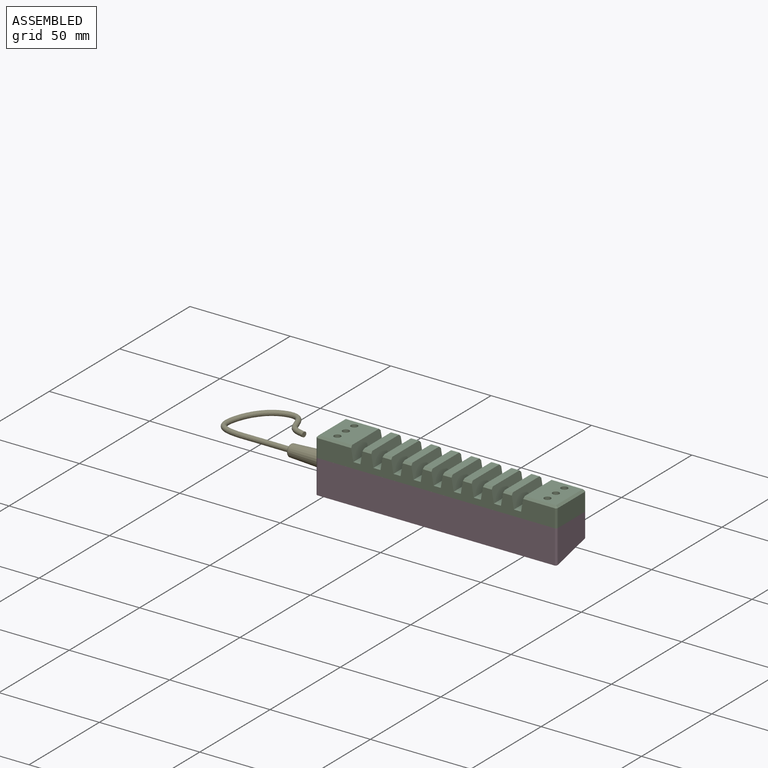
[diagram: assembled view]
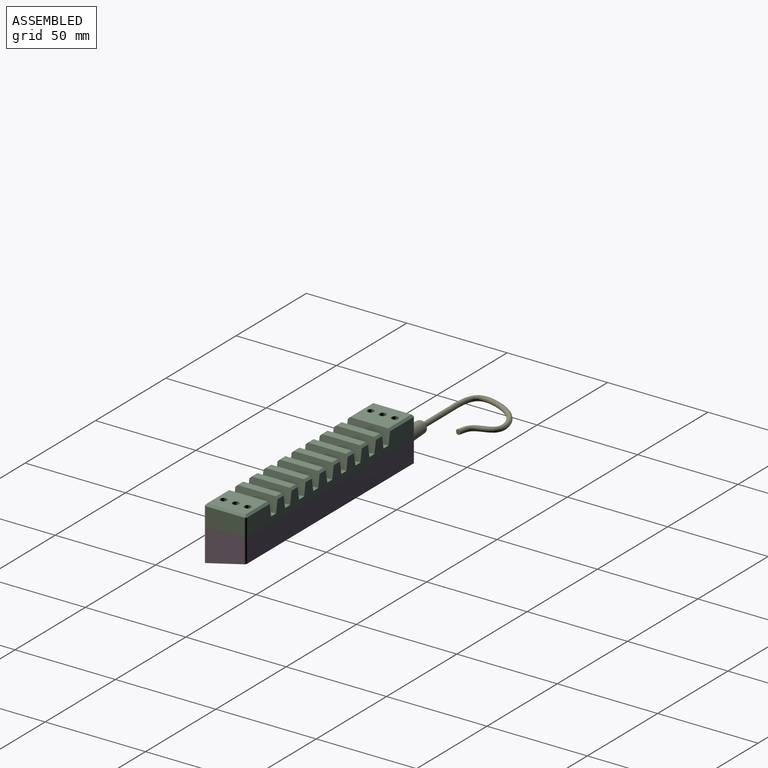
[diagram: assembled view, second angle]
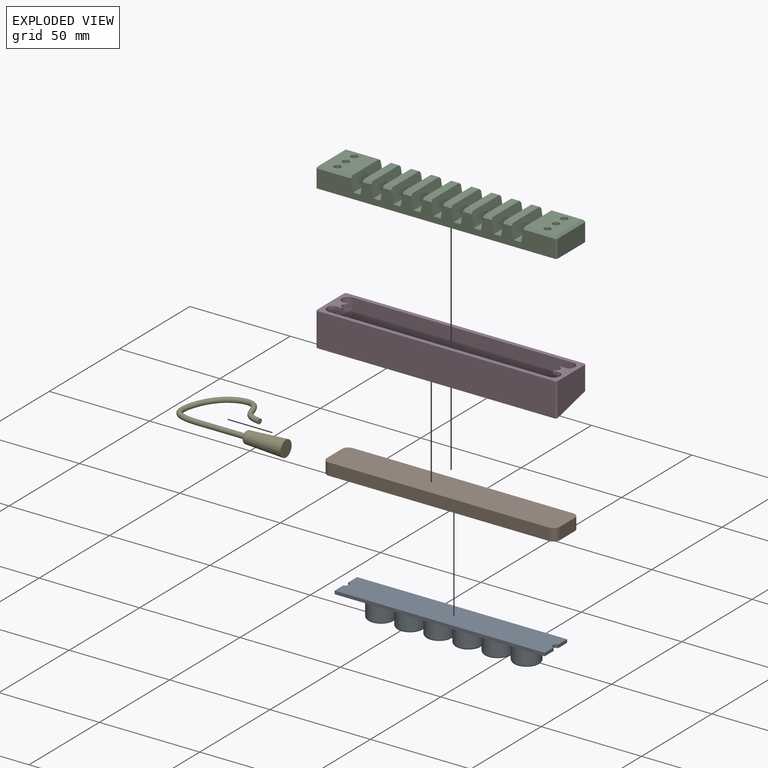
[diagram: exploded view]
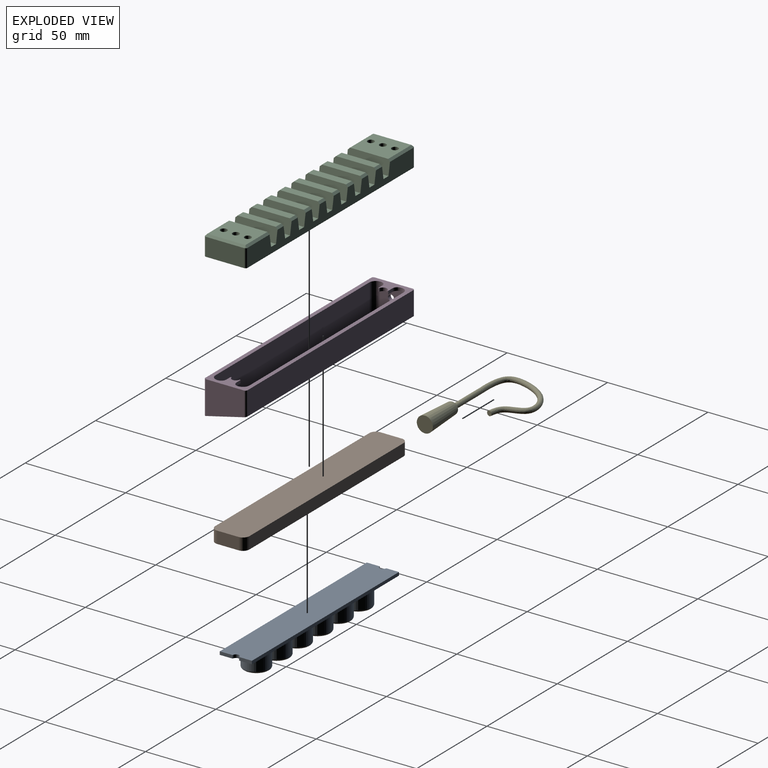
[diagram: exploded view, second angle]
ASSEMBLY  parts=5 mates=4
PART A: 28 faces, bbox 104.6x16x10.6 mm
  f0: plane 6.4x1.6mm, normal (1,0,0), area 10.2mm2, adj f2,f3,f7,f8
  f1: plane 6.4x1.6mm, normal (-1,0,0), area 10.2mm2, adj f2,f3,f7,f9
  f2: plane 104.6x16mm, normal (0,0,1), area 869.2mm2, adj f0,f1,f4,f5,f6,f7,f8,f9
  f3: plane 104.6x16mm, normal (0,0,-1), area 1665.6mm2, adj f0,f1,f4,f5,f6,f7,f8,f9
  f4: plane 6.4x1.6mm, normal (1,0,0), area 10.2mm2, adj f2,f3,f5,f8
  f5: plane 104.6x1.6mm, normal (0,1,0), area 167.4mm2, adj f2,f3,f4,f6
  f6: plane 6.4x1.6mm, normal (-1,0,0), area 10.2mm2, adj f2,f3,f5,f9
  f7: plane 104.6x1.6mm, normal (0,-1,0), area 167.4mm2, adj f0,f1,f2,f3
  f8: cylinder r=1.6mm len=3.2mm, axis (0,0,1), area 8mm2, adj f0,f2,f3,f4
  f9: cylinder r=1.6mm len=3.2mm, axis (0,0,1), area 8mm2, adj f1,f2,f3,f6
  f10: cylinder r=6.5mm len=13mm, axis (0,0,-1), area 326.7mm2, adj f2,f27
  f11: plane 11x11mm, normal (0,0,1), area 95mm2, adj f27
  f12: cylinder r=6.5mm len=13mm, axis (0,0,-1), area 326.7mm2, adj f2,f26
  f13: plane 11x11mm, normal (0,0,1), area 95mm2, adj f26
  f14: cylinder r=6.5mm len=13mm, axis (0,0,-1), area 326.7mm2, adj f2,f25
  f15: plane 11x11mm, normal (0,0,1), area 95mm2, adj f25
  f16: cylinder r=6.5mm len=13mm, axis (0,0,-1), area 326.7mm2, adj f2,f24
  f17: plane 11x11mm, normal (0,0,1), area 95mm2, adj f24
  f18: cylinder r=6.5mm len=13mm, axis (0,0,-1), area 326.7mm2, adj f2,f23
  f19: plane 11x11mm, normal (0,0,1), area 95mm2, adj f23
  f20: cylinder r=6.5mm len=13mm, axis (0,0,-1), area 326.7mm2, adj f2,f22
  f21: plane 11x11mm, normal (0,0,1), area 95mm2, adj f22
  f22: torus R=5.5mm, axis (0,0,1), area 60.6mm2, adj f20,f21
  f23: torus R=5.5mm, axis (0,0,1), area 60.6mm2, adj f18,f19
  f24: torus R=5.5mm, axis (0,0,1), area 60.6mm2, adj f16,f17
  f25: torus R=5.5mm, axis (0,0,1), area 60.6mm2, adj f14,f15
  f26: torus R=5.5mm, axis (0,0,1), area 60.6mm2, adj f12,f13
  f27: torus R=5.5mm, axis (0,0,1), area 60.6mm2, adj f10,f11
PART B: 10 faces, bbox 116x17x6 mm
  f0: plane 10.6x6mm, normal (1,0,0), area 63.6mm2, adj f4,f5,f6,f9
  f1: plane 109.6x6mm, normal (0,1,0), area 657.6mm2, adj f4,f5,f6,f7
  f2: plane 10.6x6mm, normal (-1,0,0), area 63.6mm2, adj f4,f5,f7,f8
  f3: plane 109.6x6mm, normal (0,-1,0), area 657.6mm2, adj f4,f5,f8,f9
  f4: plane 116x17mm, normal (0,0,1), area 1963.2mm2, adj f0,f1,f2,f3,f6,f7,f8,f9
  f5: plane 116x17mm, normal (0,0,-1), area 1963.2mm2, adj f0,f1,f2,f3,f6,f7,f8,f9
  f6: cylinder r=3.2mm len=6mm, axis (0,0,1), area 30.2mm2, adj f0,f1,f4,f5
  f7: cylinder r=3.2mm len=6mm, axis (0,0,-1), area 30.2mm2, adj f1,f2,f4,f5
  f8: cylinder r=3.2mm len=6mm, axis (0,0,1), area 30.2mm2, adj f2,f3,f4,f5
  f9: cylinder r=3.2mm len=6mm, axis (0,0,-1), area 30.2mm2, adj f0,f3,f4,f5
PART C: 82 faces, bbox 120x21x10 mm
  f0: plane 19x15.5mm, normal (0,0,1), area 268.8mm2, adj f15,f46,f48,f50,f52,f78,f80
  f1: plane 19x16.5mm, normal (0,0,1), area 287.8mm2, adj f40,f47,f53,f55,f57,f74,f76
  f2: plane 19x4mm, normal (0,0,1), area 76mm2, adj f37,f39,f65,f73
  f3: plane 19x4mm, normal (0,0,1), area 76mm2, adj f34,f36,f64,f72
  f4: plane 19x4mm, normal (0,0,1), area 76mm2, adj f31,f33,f63,f71
  f5: plane 19x4mm, normal (0,0,1), area 76mm2, adj f28,f30,f62,f70
  f6: plane 19x4mm, normal (0,0,1), area 76mm2, adj f25,f27,f61,f69
  f7: plane 19x4mm, normal (0,0,1), area 76mm2, adj f22,f24,f60,f68
  f8: plane 19x4mm, normal (0,0,1), area 76mm2, adj f19,f21,f59,f67
  f9: plane 19x4mm, normal (0,0,1), area 76mm2, adj f16,f18,f58,f66
  f10: plane 118x9mm, normal (0,1,0), area 814.2mm2, adj f14,f15,f16,f17,f18,f19,f20,f21
  f11: plane 118x9mm, normal (0,-1,0), area 814.2mm2, adj f14,f15,f16,f17,f18,f19,f20,f21
  f12: plane 19x9mm, normal (1,0,0), area 171mm2, adj f14,f42,f45,f50
  f13: plane 19x9mm, normal (-1,0,0), area 171mm2, adj f14,f43,f44,f55
  f14: plane 120x21mm, normal (0,0,-1), area 2502mm2, adj f10,f11,f12,f13,f42,f43,f44,f45
  f15: plane 21x7mm, normal (-0.98,0,0.17), area 148.3mm2, adj f0,f10,f11,f17,f48,f52
  f16: plane 21x7mm, normal (0.98,0,0.17), area 148.3mm2, adj f9,f10,f11,f17,f58,f66
  f17: plane 21x3.53mm, normal (0,0,1), area 74.2mm2, adj f10,f11,f15,f16
  f18: plane 21x7mm, normal (-0.98,0,0.17), area 148.3mm2, adj f9,f10,f11,f20,f58,f66
  f19: plane 21x7mm, normal (0.98,0,0.17), area 148.3mm2, adj f8,f10,f11,f20,f59,f67
  f20: plane 21x3.53mm, normal (0,0,1), area 74.2mm2, adj f10,f11,f18,f19
  f21: plane 21x7mm, normal (-0.98,0,0.17), area 148.3mm2, adj f8,f10,f11,f23,f59,f67
  f22: plane 21x7mm, normal (0.98,0,0.17), area 148.3mm2, adj f7,f10,f11,f23,f60,f68
  f23: plane 21x3.53mm, normal (0,0,1), area 74.2mm2, adj f10,f11,f21,f22
  f24: plane 21x7mm, normal (-0.98,0,0.17), area 148.3mm2, adj f7,f10,f11,f26,f60,f68
  f25: plane 21x7mm, normal (0.98,0,0.17), area 148.3mm2, adj f6,f10,f11,f26,f61,f69
  f26: plane 21x3.53mm, normal (0,0,1), area 74.2mm2, adj f10,f11,f24,f25
  f27: plane 21x7mm, normal (-0.98,0,0.17), area 148.3mm2, adj f6,f10,f11,f29,f61,f69
  f28: plane 21x7mm, normal (0.98,0,0.17), area 148.3mm2, adj f5,f10,f11,f29,f62,f70
  f29: plane 21x3.53mm, normal (0,0,1), area 74.2mm2, adj f10,f11,f27,f28
  f30: plane 21x7mm, normal (-0.98,0,0.17), area 148.3mm2, adj f5,f10,f11,f32,f62,f70
  f31: plane 21x7mm, normal (0.98,0,0.17), area 148.3mm2, adj f4,f10,f11,f32,f63,f71
  f32: plane 21x3.53mm, normal (0,0,1), area 74.2mm2, adj f10,f11,f30,f31
  f33: plane 21x7mm, normal (-0.98,0,0.17), area 148.3mm2, adj f4,f10,f11,f35,f63,f71
  f34: plane 21x7mm, normal (0.98,0,0.17), area 148.3mm2, adj f3,f10,f11,f35,f64,f72
  f35: plane 21x3.53mm, normal (0,0,1), area 74.2mm2, adj f10,f11,f33,f34
  f36: plane 21x7mm, normal (-0.98,0,0.17), area 148.3mm2, adj f3,f10,f11,f38,f64,f72
  f37: plane 21x7mm, normal (0.98,0,0.17), area 148.3mm2, adj f2,f10,f11,f38,f65,f73
  f38: plane 21x3.53mm, normal (0,0,1), area 74.2mm2, adj f10,f11,f36,f37
  f39: plane 21x7mm, normal (-0.98,0,0.17), area 148.3mm2, adj f2,f10,f11,f41,f65,f73
  f40: plane 21x7mm, normal (0.98,0,0.17), area 148.3mm2, adj f1,f10,f11,f41,f53,f57
  f41: plane 21x3.53mm, normal (0,0,1), area 74.2mm2, adj f10,f11,f39,f40
  f42: cylinder r=1mm len=9mm, axis (0,0,1), area 14.1mm2, adj f10,f12,f14,f49
  f43: cylinder r=1mm len=9mm, axis (0,0,-1), area 14.1mm2, adj f10,f13,f14,f54
  f44: cylinder r=1mm len=9mm, axis (0,0,1), area 14.1mm2, adj f11,f13,f14,f56
  f45: cylinder r=1mm len=9mm, axis (0,0,-1), area 14.1mm2, adj f11,f12,f14,f51
  f46: cylinder r=1.65mm len=10mm, axis (0,0,-1), area 103.7mm2, adj f0,f14
  f47: cylinder r=1.65mm len=10mm, axis (0,0,-1), area 103.7mm2, adj f1,f14
  f48: plane 15.68x1mm, normal (0,0.71,0.71), area 22mm2, adj f0,f10,f15,f49
  f49: cone r=1mm half-angle=45deg, axis (0,0,-1), area 1.1mm2, adj f42,f48,f50
  f50: plane 19x1mm, normal (0.71,0,0.71), area 26.9mm2, adj f0,f12,f49,f51
  f51: cone r=1mm half-angle=45deg, axis (0,0,-1), area 1.1mm2, adj f45,f50,f52
  f52: plane 15.68x1mm, normal (0,-0.71,0.71), area 22mm2, adj f0,f11,f15,f51
  f53: plane 16.68x1mm, normal (0,0.71,0.71), area 23.5mm2, adj f1,f10,f40,f54
  f54: cone r=1mm half-angle=45deg, axis (0,0,-1), area 1.1mm2, adj f43,f53,f55
  f55: plane 19x1mm, normal (-0.71,0,0.71), area 26.9mm2, adj f1,f13,f54,f56
  f56: cone r=1mm half-angle=45deg, axis (0,0,-1), area 1.1mm2, adj f44,f55,f57
  f57: plane 16.68x1mm, normal (0,-0.71,0.71), area 23.5mm2, adj f1,f11,f40,f56
  f58: plane 4.35x1mm, normal (0,-0.71,0.71), area 5.9mm2, adj f9,f11,f16,f18
  f59: plane 4.35x1mm, normal (0,-0.71,0.71), area 5.9mm2, adj f8,f11,f19,f21
  f60: plane 4.35x1mm, normal (0,-0.71,0.71), area 5.9mm2, adj f7,f11,f22,f24
  f61: plane 4.35x1mm, normal (0,-0.71,0.71), area 5.9mm2, adj f6,f11,f25,f27
  f62: plane 4.35x1mm, normal (0,-0.71,0.71), area 5.9mm2, adj f5,f11,f28,f30
  f63: plane 4.35x1mm, normal (0,-0.71,0.71), area 5.9mm2, adj f4,f11,f31,f33
  f64: plane 4.35x1mm, normal (0,-0.71,0.71), area 5.9mm2, adj f3,f11,f34,f36
  f65: plane 4.35x1mm, normal (0,-0.71,0.71), area 5.9mm2, adj f2,f11,f37,f39
  f66: plane 4.35x1mm, normal (0,0.71,0.71), area 5.9mm2, adj f9,f10,f16,f18
  f67: plane 4.35x1mm, normal (0,0.71,0.71), area 5.9mm2, adj f8,f10,f19,f21
  f68: plane 4.35x1mm, normal (0,0.71,0.71), area 5.9mm2, adj f7,f10,f22,f24
  f69: plane 4.35x1mm, normal (0,0.71,0.71), area 5.9mm2, adj f6,f10,f25,f27
  f70: plane 4.35x1mm, normal (0,0.71,0.71), area 5.9mm2, adj f5,f10,f28,f30
  f71: plane 4.35x1mm, normal (0,0.71,0.71), area 5.9mm2, adj f4,f10,f31,f33
  f72: plane 4.35x1mm, normal (0,0.71,0.71), area 5.9mm2, adj f3,f10,f34,f36
  f73: plane 4.35x1mm, normal (0,0.71,0.71), area 5.9mm2, adj f2,f10,f37,f39
  f74: cylinder r=1.65mm len=5.5mm, axis (0,0,1), area 57mm2, adj f1,f75
  f75: plane 3.3x3.3mm, normal (0,0,1), area 8.6mm2, adj f74
  f76: cylinder r=1.65mm len=5.5mm, axis (0,0,1), area 57mm2, adj f1,f77
  f77: plane 3.3x3.3mm, normal (0,0,1), area 8.6mm2, adj f76
  f78: cylinder r=1.65mm len=5.5mm, axis (0,0,1), area 57mm2, adj f0,f79
  f79: plane 3.3x3.3mm, normal (0,0,1), area 8.6mm2, adj f78
  f80: cylinder r=1.65mm len=5.5mm, axis (0,0,1), area 57mm2, adj f0,f81
  f81: plane 3.3x3.3mm, normal (0,0,1), area 8.6mm2, adj f80
PART D: 35 faces, bbox 120x21x16.8 mm
  f0: plane 19x16.54mm, normal (1,0,0), area 271.5mm2, adj f7,f10,f16,f34
  f1: plane 118x11.8mm, normal (0,1,0), area 1392.4mm2, adj f7,f8,f16,f34
  f2: plane 15.55x10.6mm, normal (1,0,0), area 128.4mm2, adj f12,f13,f16,f17,f29,f30,f33,f34
  f3: plane 19x16.54mm, normal (-1,0,0), area 264.4mm2, adj f8,f9,f16,f33,f34
  f4: plane 15.55x10.6mm, normal (-1,0,0), area 135.5mm2, adj f11,f14,f16,f20,f27,f28,f34
  f5: plane 109.6x12.27mm, normal (0,-1,0), area 1345.2mm2, adj f11,f12,f16,f34
  f6: plane 109.6x16.3mm, normal (0,1,0), area 1786.9mm2, adj f13,f14,f16,f34
  f7: cylinder r=1mm len=12.04mm, axis (0,0,1), area 18.7mm2, adj f0,f1,f16,f34
  f8: cylinder r=1mm len=12.04mm, axis (0,0,-1), area 18.7mm2, adj f1,f3,f16,f34
  f9: cylinder r=1mm len=16.78mm, axis (0,0,1), area 26.2mm2, adj f3,f16,f21,f34
  f10: cylinder r=1mm len=16.78mm, axis (0,0,-1), area 26.2mm2, adj f0,f16,f21,f34
  f11: cylinder r=3.2mm len=13.03mm, axis (0,0,1), area 63.1mm2, adj f4,f5,f16,f34
  f12: cylinder r=3.2mm len=13.03mm, axis (0,0,-1), area 63.1mm2, adj f2,f5,f16,f34
  f13: cylinder r=3.2mm len=16.3mm, axis (0,0,1), area 80.6mm2, adj f2,f6,f16,f34
  f14: cylinder r=3.2mm len=16.3mm, axis (0,0,-1), area 80.6mm2, adj f4,f6,f16,f34
  f15: plane 1.6x0.51mm, normal (1,0,0), area 0.8mm2, adj f16,f17,f24,f32
  f16: plane 120x21mm, normal (0,0,1), area 605.3mm2, adj f0,f1,f2,f3,f4,f5,f6,f7
  f17: plane 10x5.5mm, normal (0,0,-1), area 24.7mm2, adj f2,f15,f22,f23,f24,f29,f30,f32
  f18: plane 1.6x0.51mm, normal (-1,0,0), area 0.8mm2, adj f16,f20,f25,f31
  f19: plane 1.6x0.51mm, normal (-1,0,0), area 0.8mm2, adj f16,f20,f26,f31
  f20: plane 10x5.5mm, normal (0,0,-1), area 24.7mm2, adj f4,f18,f19,f25,f26,f27,f28,f31
  f21: plane 118x16.78mm, normal (0,-1,0), area 1979.9mm2, adj f9,f10,f16,f34
  f22: plane 3x1.6mm, normal (0,-1,0), area 4.8mm2, adj f16,f17,f23,f29
  f23: plane 1.6x0.51mm, normal (1,0,0), area 0.8mm2, adj f16,f17,f22,f32
  f24: plane 3x1.6mm, normal (0,1,0), area 4.8mm2, adj f15,f16,f17,f30
  f25: plane 3x1.6mm, normal (0,-1,0), area 4.8mm2, adj f16,f18,f20,f27
  f26: plane 3x1.6mm, normal (0,1,0), area 4.8mm2, adj f16,f19,f20,f28
  f27: cylinder r=2.5mm len=2.5mm, axis (0,0,-1), area 6.3mm2, adj f4,f16,f20,f25
  f28: cylinder r=2.5mm len=2.5mm, axis (0,0,1), area 6.3mm2, adj f4,f16,f20,f26
  f29: cylinder r=2.5mm len=2.5mm, axis (0,0,-1), area 6.3mm2, adj f2,f16,f17,f22
  f30: cylinder r=2.5mm len=2.5mm, axis (0,0,1), area 6.3mm2, adj f2,f16,f17,f24
  f31: cylinder r=2mm len=3.98mm, axis (0,0,-1), area 9.4mm2, adj f16,f18,f19,f20
  f32: cylinder r=2mm len=3.98mm, axis (0,0,-1), area 9.4mm2, adj f15,f16,f17,f23
  f33: cylinder r=1.5mm len=3mm, axis (-1,0,0), area 18.8mm2, adj f2,f3
  f34: plane 120x21mm, normal (0,0.23,-0.97), area 571.3mm2, adj f0,f1,f2,f3,f4,f5,f6,f7
PART E: 7 faces, bbox 8x34.4x58.8 mm
  f0: cone r=4mm half-angle=3deg, axis (0,0,-1), area 419.6mm2, adj f2,f6
  f1: plane 4.01x4.01mm, normal (0,0,1), area 7.7mm2, adj f3,f6
  f2: plane 8x8mm, normal (0,0,-1), area 50.3mm2, adj f0
  f3: cylinder r=1.25mm len=10.55mm, axis (0,0,1), area 82.9mm2, adj f1,f5
  f4: plane 2.5x2.47mm, normal (0,-0.17,-0.99), area 4.9mm2, adj f5
  f5: bspline ~35.35x32.93mm, area 631.7mm2, adj f3,f4
  f6: torus R=2mm, axis (0,0,1), area 25.1mm2, adj f0,f1
PLACE A rot(axis=(1,0,0),180deg) t=(-25.54,-6.29,7.69)mm
PLACE B t=(-25.54,-6.29,0.09)mm
PLACE C t=(-25.54,-6.29,7.69)mm
PLACE D t=(-25.54,-6.29,-4.11)mm
PLACE E rot(axis=(0,-1,0),90deg) t=(-85.54,-6.29,1.79)mm
MATE fastened E.f0 <-> D.f33  axis (1,0,0) through (-85.54,-6.29,1.79)mm
MATE fastened B.f4 <-> D.f17  axis (0,0,1) through (-83.54,-6.29,6.09)mm
MATE fastened A.f8 <-> C.f46  axis (0,0,-1) through (26.76,-6.29,7.69)mm
MATE fastened D.f16 <-> C.f14  axis (0,0,1) through (-85.54,3.21,7.69)mm
